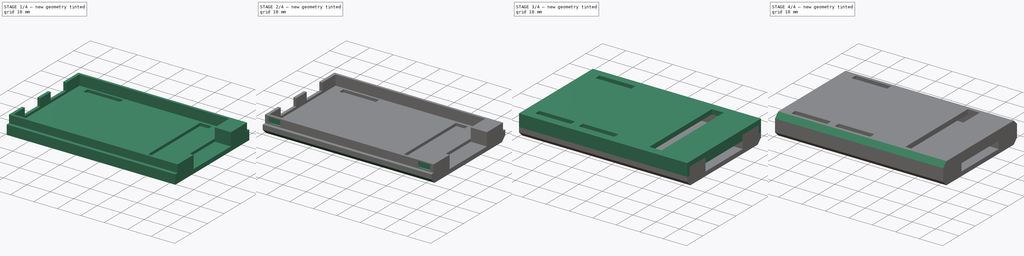
[diagram: build sequence overview — one tinted view per stage of 4, left to right]
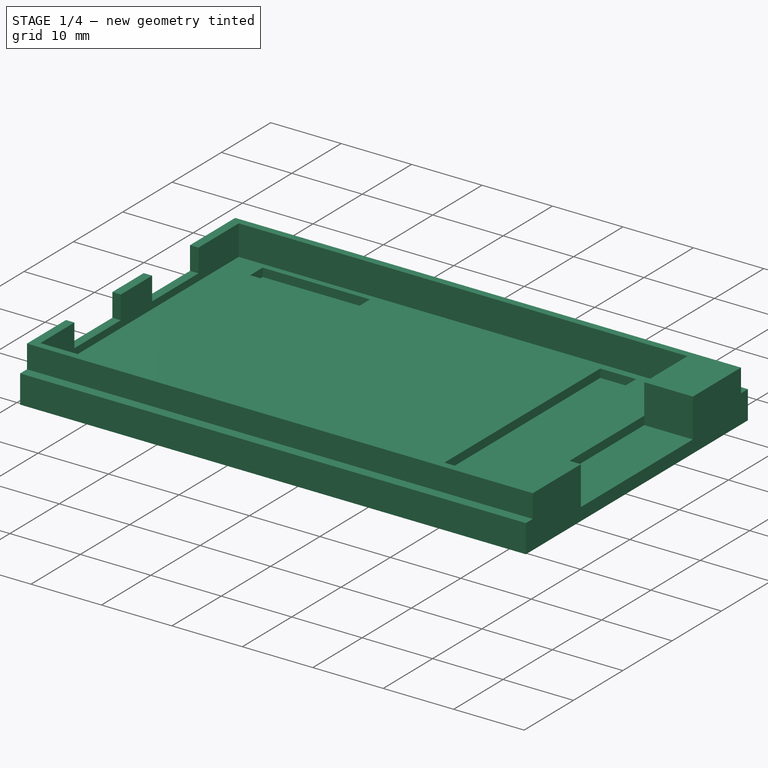
[diagram: stage 1 of 4 — iso view after this stage's code; geometry added in this stage tinted green]
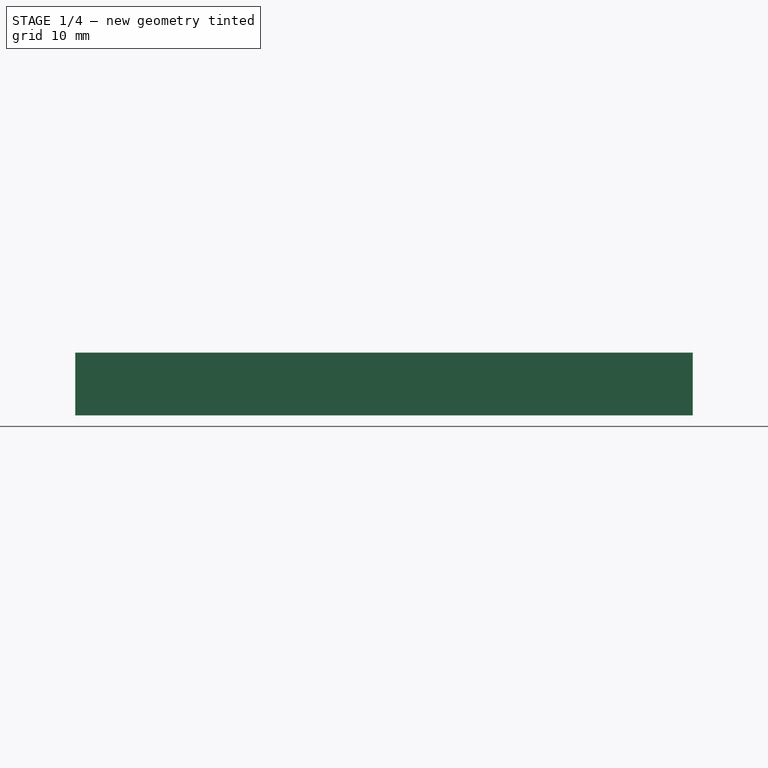
[diagram: stage 1 of 4 — front view after this stage's code; geometry added in this stage tinted green]
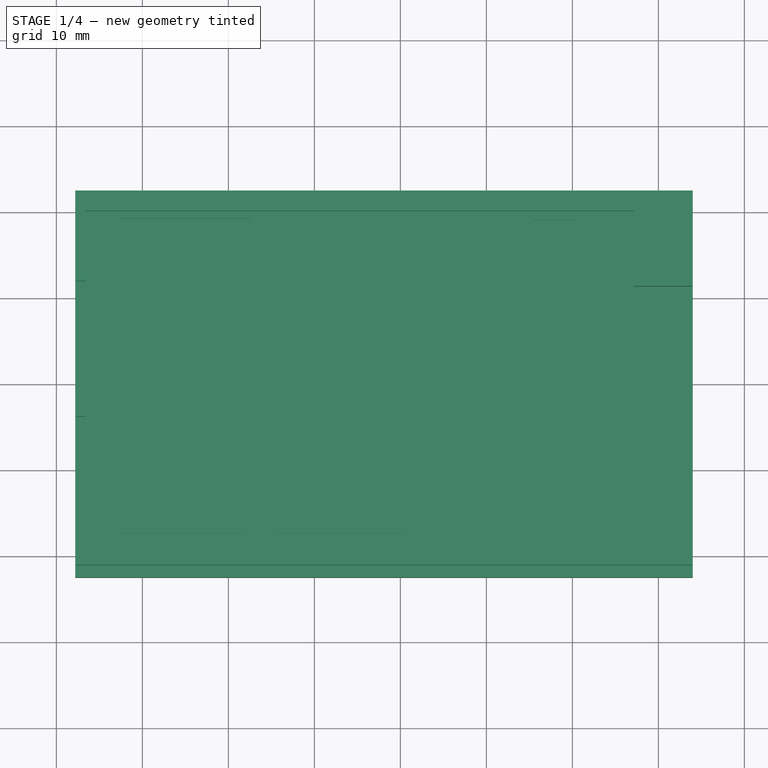
[diagram: stage 1 of 4 — top view after this stage's code; geometry added in this stage tinted green]
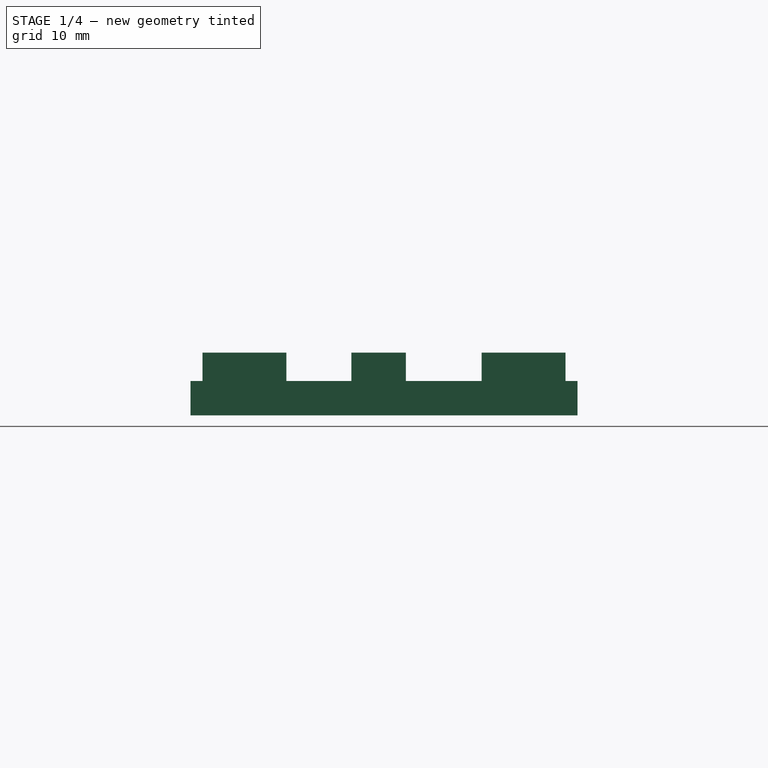
[diagram: stage 1 of 4 — right view after this stage's code; geometry added in this stage tinted green]
FCSTD DOCUMENT  (FreeCAD 0.21RUnknown)
Label: case
License: All rights reserved
LicenseURL: http://en.wikipedia.org/wiki/All_rights_reserved
objects: Part::Feature×42, App::Part×42, Sketcher::SketchObject×12, PartDesign::Pad×8, PartDesign::Pocket×3, PartDesign::Chamfer×3, PartDesign::ShapeBinder×2, PartDesign::Body×2
note: 86 computed .brp shape members not serialized (recipe doc carries the construction recipe); baked Part::Feature solids carry a one-line shape summary decoded from their .brp

FEATURE [Part::Feature] Part__Feature  label="PCB"
  shape: bbox 69 x 40 x 1.6 mm, 266 faces (baked)
FEATURE [Part::Feature] Part__Feature001  label="C101-1"
  shape: bbox 1.6 x 0.8 x 0.8 mm, 28 faces (baked)
FEATURE [App::Part] C101
  Group = -> [Part__Feature001]
  Origin = -> Origin
  Placement = pos=(-41.25,5.5,1.65) rot=(0,0,1;1.5708rad)
FEATURE [Part::Feature] Part__Feature002  label="C102-1"
  shape: bbox 1.6 x 0.8 x 0.8 mm, 28 faces (baked)
FEATURE [App::Part] C102
  Group = -> [Part__Feature002]
  Origin = -> Origin001
  Placement = pos=(-35.25,5.5,1.65) rot=(0,0,-1;1.5708rad)
FEATURE [Part::Feature] Part__Feature003  label="C103-1"
  shape: bbox 1.6 x 0.8 x 0.8 mm, 28 faces (baked)
FEATURE [App::Part] C103
  Group = -> [Part__Feature003]
  Origin = -> Origin002
  Placement = pos=(-40.086,-11.524,1.65) rot=(0,0,1;3.14159rad)
FEATURE [Part::Feature] Part__Feature004  label="C201-1"
  shape: bbox 2 x 1.25 x 1.25 mm, 28 faces (baked)
FEATURE [App::Part] C201
  Group = -> [Part__Feature004]
  Origin = -> Origin003
  Placement = pos=(-19.5,14.25,1.65) rot=(0,0,1;3.14159rad)
FEATURE [Part::Feature] Part__Feature005  label="C202-1"
  shape: bbox 2 x 1.25 x 1.25 mm, 28 faces (baked)
FEATURE [App::Part] C202
  Group = -> [Part__Feature005]
  Origin = -> Origin004
  Placement = pos=(-23,13.05,1.65) rot=(0,0,1;1.5708rad)
FEATURE [Part::Feature] Part__Feature006  label="C203-1"
  shape: bbox 2 x 1.25 x 1.25 mm, 28 faces (baked)
FEATURE [App::Part] C203
  Group = -> [Part__Feature006]
  Origin = -> Origin005
  Placement = pos=(-23,17.05,1.65) rot=(0,0,-1;1.5708rad)
FEATURE [Part::Feature] Part__Feature007  label="C204-1"
  shape: bbox 1.6 x 0.8 x 0.8 mm, 28 faces (baked)
FEATURE [App::Part] C204
  Group = -> [Part__Feature007]
  Origin = -> Origin006
  Placement = pos=(-50.048,-2.304,1.65) rot=(0,0,1;3.14159rad)
FEATURE [Part::Feature] Part__Feature008  label="C205-1"
  shape: bbox 1.6 x 0.8 x 0.8 mm, 28 faces (baked)
FEATURE [App::Part] C205
  Group = -> [Part__Feature008]
  Origin = -> Origin007
  Placement = pos=(-50.048,-3.84,1.65) rot=(0,0,1;3.14159rad)
FEATURE [Part::Feature] Part__Feature009  label="C206-1"
  shape: bbox 1.6 x 0.8 x 0.8 mm, 28 faces (baked)
FEATURE [App::Part] C206
  Group = -> [Part__Feature009]
  Origin = -> Origin008
  Placement = pos=(-50.03,-0.024,1.65) rot=(0,0,1;3.14159rad)
FEATURE [Part::Feature] Part__Feature010  label="C207-1"
  shape: bbox 1.6 x 0.8 x 0.8 mm, 28 faces (baked)
FEATURE [App::Part] C207
  Group = -> [Part__Feature010]
  Origin = -> Origin009
  Placement = pos=(-50.048,-5.376,1.65) rot=(0,0,1;3.14159rad)
FEATURE [Part::Feature] Part__Feature011  label="C208-1"
  shape: bbox 1.6 x 0.8 x 0.8 mm, 28 faces (baked)
FEATURE [App::Part] C208
  Group = -> [Part__Feature011]
  Origin = -> Origin010
  Placement = pos=(-43.392,-7.552,1.65) rot=(0,0,-1;1.5708rad)
FEATURE [Part::Feature] Part__Feature012  label="C209-1"
  shape: bbox 1.6 x 0.8 x 0.8 mm, 28 faces (baked)
FEATURE [App::Part] C209
  Group = -> [Part__Feature012]
  Origin = -> Origin011
  Placement = pos=(-36.75,-4,1.65) rot=(0,0,1;0rad)
FEATURE [Part::Feature] Part__Feature013  label="C210-1"
  shape: bbox 1.6 x 0.8 x 0.8 mm, 28 faces (baked)
FEATURE [App::Part] C210
  Group = -> [Part__Feature013]
  Origin = -> Origin012
  Placement = pos=(-36.75,0,1.65) rot=(0,0,1;0rad)
FEATURE [Part::Feature] Part__Feature014  label="C211-1"
  shape: bbox 1.6 x 0.8 x 0.8 mm, 28 faces (baked)
FEATURE [App::Part] C211
  Group = -> [Part__Feature014]
  Origin = -> Origin013
  Placement = pos=(-44.25,5.5,1.65) rot=(0,0,1;1.5708rad)
FEATURE [Part::Feature] Part__Feature015  label="C212-1"
  shape: bbox 1.6 x 0.8 x 0.8 mm, 28 faces (baked)
FEATURE [App::Part] C212
  Group = -> [Part__Feature015]
  Origin = -> Origin014
  Placement = pos=(-47.25,-7.5,1.65) rot=(0,0,-1;1.5708rad)
FEATURE [Part::Feature] Part__Feature016  label="C213-1"
  shape: bbox 1.6 x 0.8 x 0.8 mm, 28 faces (baked)
FEATURE [App::Part] C213
  Group = -> [Part__Feature016]
  Origin = -> Origin015
  Placement = pos=(-42.112,-7.936,1.65) rot=(0,0,-1;1.5708rad)
FEATURE [Part::Feature] Part__Feature017  label="C214-1"
  shape: bbox 1.6 x 0.8 x 0.8 mm, 28 faces (baked)
FEATURE [App::Part] C214
  Group = -> [Part__Feature017]
  Origin = -> Origin016
  Placement = pos=(-45.75,5.5,1.65) rot=(0,0,1;1.5708rad)
FEATURE [Part::Feature] Part__Feature018  label="C215-1"
  shape: bbox 1.6 x 0.8 x 0.8 mm, 28 faces (baked)
FEATURE [App::Part] C215
  Group = -> [Part__Feature018]
  Origin = -> Origin017
  Placement = pos=(-24.5,8,1.65) rot=(0,0,1;3.14159rad)
FEATURE [Part::Feature] Part__Feature019  label="C216-1"
  shape: bbox 1.6 x 0.8 x 0.8 mm, 28 faces (baked)
FEATURE [App::Part] C216
  Group = -> [Part__Feature019]
  Origin = -> Origin018
  Placement = pos=(-24.5,9.5,1.65) rot=(0,0,1;3.14159rad)
FEATURE [Part::Feature] Part__Feature020  label="C217-1"
  shape: bbox 1.6 x 0.8 x 0.8 mm, 28 faces (baked)
FEATURE [App::Part] C217
  Group = -> [Part__Feature020]
  Origin = -> Origin019
  Placement = pos=(-24.5,-0.5,1.65) rot=(0,0,1;3.14159rad)
FEATURE [Part::Feature] Part__Feature021  label="D101-1"
  shape: bbox 1.6 x 0.8 x 1.1 mm, 50 faces (baked)
FEATURE [App::Part] D101
  Group = -> [Part__Feature021]
  Origin = -> Origin020
  Placement = pos=(-26,-17.768,1.65) rot=(0,0,1;1.5708rad)
FEATURE [Part::Feature] Part__Feature022  label="D102-1"
  shape: bbox 1.6 x 0.8 x 1.1 mm, 50 faces (baked)
FEATURE [App::Part] D102
  Group = -> [Part__Feature022]
  Origin = -> Origin021
  Placement = pos=(-23.732,-17.768,1.65) rot=(0,0,1;1.5708rad)
FEATURE [Part::Feature] Part__Feature023  label="D103-1"
  shape: bbox 1.6 x 0.8 x 1.1 mm, 50 faces (baked)
FEATURE [App::Part] D103
  Group = -> [Part__Feature023]
  Origin = -> Origin022
  Placement = pos=(-21.464,-17.768,1.65) rot=(0,0,1;1.5708rad)
FEATURE [Part::Feature] Part__Feature024  label="R101-1"
  shape: bbox 1.6 x 0.8 x 0.45 mm, 26 faces (baked)
FEATURE [App::Part] R101
  Group = -> [Part__Feature024]
  Origin = -> Origin023
  Placement = pos=(-42.75,5.5,1.65) rot=(0,0,-1;1.5708rad)
FEATURE [Part::Feature] Part__Feature025  label="R102-1"
  shape: bbox 1.6 x 0.8 x 0.45 mm, 26 faces (baked)
FEATURE [App::Part] R102
  Group = -> [Part__Feature025]
  Origin = -> Origin024
  Placement = pos=(-21.76,8.448,1.65) rot=(0,0,-1;1.5708rad)
FEATURE [Part::Feature] Part__Feature026  label="R103-1"
  shape: bbox 1.6 x 0.8 x 0.45 mm, 26 faces (baked)
FEATURE [App::Part] R103
  Group = -> [Part__Feature026]
  Origin = -> Origin025
  Placement = pos=(-56.96,2.048,1.65) rot=(0,0,-1;1.5708rad)
FEATURE [Part::Feature] Part__Feature027  label="R104-1"
  shape: bbox 1.6 x 0.8 x 0.45 mm, 26 faces (baked)
FEATURE [App::Part] R104
  Group = -> [Part__Feature027]
  Origin = -> Origin026
  Placement = pos=(-36.75,-5.5,1.65) rot=(0,0,1;0rad)
FEATURE [Part::Feature] Part__Feature028  label="R105-1"
  shape: bbox 1.6 x 0.8 x 0.45 mm, 26 faces (baked)
FEATURE [App::Part] R105
  Group = -> [Part__Feature028]
  Origin = -> Origin027
  Placement = pos=(-58.624,12.416,1.65) rot=(0,0,1;1.5708rad)
FEATURE [Part::Feature] Part__Feature029  label="R106-1"
  shape: bbox 1 x 0.5 x 0.35 mm, 26 faces (baked)
FEATURE [App::Part] R106
  Group = -> [Part__Feature029]
  Origin = -> Origin028
  Placement = pos=(-44.75,-7,1.65) rot=(0,0,1;1.5708rad)
FEATURE [Part::Feature] Part__Feature030  label="R107-1"
  shape: bbox 1 x 0.5 x 0.35 mm, 26 faces (baked)
FEATURE [App::Part] R107
  Group = -> [Part__Feature030]
  Origin = -> Origin029
  Placement = pos=(-45.75,-7,1.65) rot=(0,0,1;1.5708rad)
FEATURE [Part::Feature] Part__Feature031  label="R108-1"
  shape: bbox 1.6 x 0.8 x 0.45 mm, 26 faces (baked)
FEATURE [App::Part] R108
  Group = -> [Part__Feature031]
  Origin = -> Origin030
  Placement = pos=(-26,-14.768,1.65) rot=(0,0,-1;1.5708rad)
FEATURE [Part::Feature] Part__Feature032  label="R109-1"
  shape: bbox 1.6 x 0.8 x 0.45 mm, 26 faces (baked)
FEATURE [App::Part] R109
  Group = -> [Part__Feature032]
  Origin = -> Origin031
  Placement = pos=(-58.624,2.048,1.65) rot=(0,0,-1;1.5708rad)
FEATURE [Part::Feature] Part__Feature033  label="R110-1"
  shape: bbox 1.6 x 0.8 x 0.45 mm, 26 faces (baked)
FEATURE [App::Part] R110
  Group = -> [Part__Feature033]
  Origin = -> Origin032
  Placement = pos=(-56.96,12.416,1.65) rot=(0,0,1;1.5708rad)
FEATURE [Part::Feature] Part__Feature034  label="R111-1"
  shape: bbox 1.6 x 0.8 x 0.45 mm, 26 faces (baked)
FEATURE [App::Part] R111
  Group = -> [Part__Feature034]
  Origin = -> Origin033
  Placement = pos=(-23.732,-14.768,1.65) rot=(0,0,-1;1.5708rad)
FEATURE [Part::Feature] Part__Feature035  label="R112-1"
  shape: bbox 1.6 x 0.8 x 0.45 mm, 26 faces (baked)
FEATURE [App::Part] R112
  Group = -> [Part__Feature035]
  Origin = -> Origin034
  Placement = pos=(-21.464,-14.768,1.65) rot=(0,0,-1;1.5708rad)
FEATURE [Part::Feature] Part__Feature036  label="R113-1"
  shape: bbox 1.6 x 0.8 x 0.45 mm, 26 faces (baked)
FEATURE [App::Part] R113
  Group = -> [Part__Feature036]
  Origin = -> Origin035
  Placement = pos=(-33.75,-5.5,1.65) rot=(0,0,1;0rad)
FEATURE [Part::Feature] Part__Feature037  label="R302-1"
  shape: bbox 1.6 x 0.8 x 0.45 mm, 26 faces (baked)
FEATURE [App::Part] R302
  Group = -> [Part__Feature037]
  Origin = -> Origin036
  Placement = pos=(-58.624,-13.696,1.65) rot=(0,0,-1;1.5708rad)
FEATURE [Part::Feature] Part__Feature038  label="R303-1"
  shape: bbox 1.6 x 0.8 x 0.45 mm, 26 faces (baked)
FEATURE [App::Part] R303
  Group = -> [Part__Feature038]
  Origin = -> Origin037
  Placement = pos=(-56.85,-3.328,1.65) rot=(0,0,1;1.5708rad)
FEATURE [Part::Feature] Part__Feature039  label="U102-1"
  shape: bbox 6 x 4.9 x 1.75 mm, 156 faces (baked)
FEATURE [App::Part] U102
  Group = -> [Part__Feature039]
  Origin = -> Origin038
  Placement = pos=(-34.75,-9.5,1.65) rot=(0,0,1;3.14159rad)
FEATURE [Part::Feature] Part__Feature040  label="U201-1"
  shape: bbox 7 x 6.5 x 1.7 mm, 78 faces (baked)
FEATURE [App::Part] U201
  Group = -> [Part__Feature040]
  Origin = -> Origin039
  Placement = pos=(-28,15.05,1.65) rot=(0,0,1;1.5708rad)
FEATURE [Part::Feature] Part__Feature041  label="U202-1"
  shape: bbox 2.8 x 2.9 x 1.55 mm, 109 faces (baked)
FEATURE [App::Part] U202
  Group = -> [Part__Feature041]
  Origin = -> Origin040
  Placement = pos=(-19.5,17.25,1.65) rot=(0,0,1;0rad)
FEATURE [App::Part] PCA
  Group = -> [Part__Feature,C101,C102,C103,C201,C202,C203,C204,C205,C206,C207,C208,C209,C210,C211,C212,C213,C214,C215,C216,C217,D101,D102,D103,R101,R102,R103,R104,R105,R106,R107,R108,R109,R110,R111,R112,R113,R302,R303,U102,U201,U202]
  Origin = -> Origin041
FEATURE [PartDesign::ShapeBinder] ShapeBinder
  Support = -> [Part__Feature]
  TraceSupport = false
FEATURE [Sketcher::SketchObject] Sketch
  ExternalGeometry = -> [ShapeBinder]
  FullyConstrained = true
  MapMode = 5
  Support = -> [XY_Plane042]
  sketch-geometry (51):
    g0: LineSegment StartX=-66.5 StartY=20 StartZ=0 EndX=-3 EndY=20 EndZ=0
    g1: LineSegment StartX=-3 StartY=20 StartZ=0 EndX=-3 EndY=11.25 EndZ=0
    g2: LineSegment StartX=-3 StartY=11.25 StartZ=0 EndX=0 EndY=11.25 EndZ=0
    g3: LineSegment StartX=0 StartY=11.25 StartZ=0 EndX=0 EndY=8 EndZ=0
    g4: LineSegment StartX=0 StartY=8 StartZ=0 EndX=2.5 EndY=8 EndZ=0
    g5: LineSegment StartX=2.5 StartY=8 StartZ=0 EndX=2.5 EndY=-8 EndZ=0
    g6: LineSegment StartX=2.5 StartY=-8 StartZ=0 EndX=0 EndY=-8 EndZ=0
    g7: LineSegment StartX=0 StartY=-8 StartZ=0 EndX=0 EndY=-11.25 EndZ=0
    g8: LineSegment StartX=0 StartY=-11.25 StartZ=0 EndX=-3 EndY=-11.25 EndZ=0
    g9: LineSegment StartX=-3 StartY=-11.25 StartZ=0 EndX=-3 EndY=-20 EndZ=0
    g10: LineSegment StartX=-3 StartY=-20 StartZ=0 EndX=-66.5 EndY=-20 EndZ=0
    g11: LineSegment StartX=-66.5 StartY=-20 StartZ=0 EndX=-66.5 EndY=20 EndZ=0
    g12: LineSegment StartX=-14.54 StartY=19.05 StartZ=0 EndX=-9.46 EndY=19.05 EndZ=0
    g13: LineSegment StartX=-9.46 StartY=19.05 StartZ=0 EndX=-9.46 EndY=-19.05 EndZ=0
    g14: LineSegment StartX=-9.46 StartY=-19.05 StartZ=0 EndX=-14.54 EndY=-19.05 EndZ=0
    g15: LineSegment StartX=-14.54 StartY=-19.05 StartZ=0 EndX=-14.54 EndY=19.05 EndZ=0
    g16: LineSegment StartX=-10.73 StartY=-17.78 StartZ=0 EndX=-9.46 EndY=-19.05 EndZ=0
    g17: LineSegment StartX=-13.27 StartY=-17.78 StartZ=0 EndX=-14.54 EndY=-19.05 EndZ=0
    g18: LineSegment StartX=-10.73 StartY=17.78 StartZ=0 EndX=-9.46 EndY=19.05 EndZ=0
    g19: LineSegment StartX=-63.12 StartY=-16.73 StartZ=0 EndX=-47.88 EndY=-16.73 EndZ=0
    g20: LineSegment StartX=-47.88 StartY=-16.73 StartZ=0 EndX=-47.88 EndY=-19.27 EndZ=0
    g21: LineSegment StartX=-47.88 StartY=-19.27 StartZ=0 EndX=-63.12 EndY=-19.27 EndZ=0
    g22: LineSegment StartX=-63.12 StartY=-19.27 StartZ=0 EndX=-63.12 EndY=-16.73 EndZ=0
    g23: LineSegment StartX=-44.62 StartY=-16.73 StartZ=0 EndX=-29.38 EndY=-16.73 EndZ=0
    g24: LineSegment StartX=-29.38 StartY=-16.73 StartZ=0 EndX=-29.38 EndY=-19.27 EndZ=0
    g25: LineSegment StartX=-29.38 StartY=-19.27 StartZ=0 EndX=-44.62 EndY=-19.27 EndZ=0
    g26: LineSegment StartX=-44.62 StartY=-19.27 StartZ=0 EndX=-44.62 EndY=-16.73 EndZ=0
    g27: LineSegment StartX=-62.62 StartY=19.27 StartZ=0 EndX=-47.38 EndY=19.27 EndZ=0
    g28: LineSegment StartX=-47.38 StartY=19.27 StartZ=0 EndX=-47.38 EndY=16.73 EndZ=0
    g29: LineSegment StartX=-47.38 StartY=16.73 StartZ=0 EndX=-62.62 EndY=16.73 EndZ=0
    g30: LineSegment StartX=-62.62 StartY=16.73 StartZ=0 EndX=-62.62 EndY=19.27 EndZ=0
    g31: LineSegment StartX=-63.12 StartY=-16.73 StartZ=0 EndX=-61.85 EndY=-18 EndZ=0
    g32: LineSegment StartX=-61.85 StartY=-18 StartZ=0 EndX=-63.12 EndY=-19.27 EndZ=0
    g33: LineSegment StartX=-49.15 StartY=-18 StartZ=0 EndX=-47.88 EndY=-16.73 EndZ=0
    g34: LineSegment StartX=-44.62 StartY=-16.73 StartZ=0 EndX=-43.35 EndY=-18 EndZ=0
    g35: LineSegment StartX=-30.65 StartY=-18 StartZ=0 EndX=-29.38 EndY=-16.73 EndZ=0
    g36: LineSegment StartX=-62.62 StartY=19.27 StartZ=0 EndX=-61.35 EndY=18 EndZ=0
    g37: LineSegment StartX=-61.35 StartY=18 StartZ=0 EndX=-62.62 EndY=16.73 EndZ=0
    g38: LineSegment StartX=-48.65 StartY=18 StartZ=0 EndX=-47.38 EndY=19.27 EndZ=0
    g39: LineSegment StartX=-60.3 StartY=2.75 StartZ=0 EndX=-67.8 EndY=2.75 EndZ=0
    g40: LineSegment StartX=-67.8 StartY=2.75 StartZ=0 EndX=-67.8 EndY=11.75 EndZ=0
    g41: LineSegment StartX=-67.8 StartY=11.75 StartZ=0 EndX=-60.3 EndY=11.75 EndZ=0
    g42: LineSegment StartX=-60.3 StartY=11.75 StartZ=0 EndX=-60.3 EndY=2.75 EndZ=0
    g43: LineSegment StartX=-60.3 StartY=-4 StartZ=0 EndX=-67.8 EndY=-4 EndZ=0
    g44: LineSegment StartX=-67.8 StartY=-4 StartZ=0 EndX=-67.8 EndY=-13 EndZ=0
    g45: LineSegment StartX=-67.8 StartY=-13 StartZ=0 EndX=-60.3 EndY=-13 EndZ=0
    g46: LineSegment StartX=-60.3 StartY=-13 StartZ=0 EndX=-60.3 EndY=-4 EndZ=0
    g47: LineSegment StartX=-61.57 StartY=10.14 StartZ=0 EndX=-60.3 EndY=11.75 EndZ=0
    g48: LineSegment StartX=-61.57 StartY=4.36 StartZ=0 EndX=-60.3 EndY=2.75 EndZ=0
    g49: LineSegment StartX=-61.57 StartY=-5.61 StartZ=0 EndX=-60.3 EndY=-4 EndZ=0
    g50: LineSegment StartX=-61.57 StartY=-11.39 StartZ=0 EndX=-60.3 EndY=-13 EndZ=0
  constraints (126):
    c: Coincident(g0,g-3)
    c: Coincident(g0,g-4)
    c: Coincident(g1,g0)
    c: Coincident(g1,g-4)
    c: Coincident(g2,g1)
    c: Coincident(g2,g-7)
    c: Coincident(g3,g2)
    c: Coincident(g3,g-7)
    c: Coincident(g4,g3)
    c: Coincident(g4,g-9)
    c: Coincident(g5,g4)
    c: Coincident(g5,g-9)
    c: Coincident(g6,g5)
    c: Coincident(g6,g-8)
    c: Coincident(g7,g6)
    c: Coincident(g7,g-8)
    c: Coincident(g8,g7)
    c: Coincident(g8,g-5)
    c: Coincident(g9,g8)
    c: Coincident(g9,g-6)
    c: Coincident(g10,g9)
    c: Coincident(g10,g-6)
    c: Coincident(g11,g10)
    c: Coincident(g11,g0)
    c: Coincident(g12,g13)
    c: Coincident(g13,g14)
    c: Coincident(g14,g15)
    c: Coincident(g15,g12)
    c: Horizontal(g12)
    c: Horizontal(g14)
    c: Vertical(g13)
    c: Vertical(g15)
    c: DistanceX(g12,g12) = 5.08
    c: DistanceY(g13,g13) = 38.1
    c: Coincident(g16,g-12)
    c: Coincident(g16,g13)
    c: Coincident(g17,g-11)
    c: Coincident(g17,g14)
    c: Coincident(g18,g-10)
    c: Coincident(g18,g12)
    c: Equal(g18,g16)
    c: Equal(g16,g17)
    c: Coincident(g19,g20)
    c: Coincident(g20,g21)
    c: Coincident(g21,g22)
    c: Coincident(g22,g19)
    c: Horizontal(g19)
    c: Horizontal(g21)
    c: Vertical(g20)
    c: Vertical(g22)
    c: Coincident(g23,g24)
    c: Coincident(g24,g25)
    c: Coincident(g25,g26)
    c: Coincident(g26,g23)
    c: Horizontal(g23)
    c: Horizontal(g25)
    c: Vertical(g24)
    c: Vertical(g26)
    c: Coincident(g27,g28)
    c: Coincident(g28,g29)
    c: Coincident(g29,g30)
    c: Coincident(g30,g27)
    c: Horizontal(g27)
    c: Horizontal(g29)
    c: Vertical(g28)
    c: Vertical(g30)
    c: DistanceY(g28,g28) = 2.54
    c: Equal(g28,g20)
    c: Equal(g20,g24)
    c: DistanceX(g23,g23) = 15.24
    c: Equal(g23,g19)
    c: Equal(g19,g29)
    c: PointOnObject(g23,g19)
    c: Coincident(g31,g19)
    c: Coincident(g31,g-15)
    c: Coincident(g32,g31)
    c: Coincident(g32,g21)
    c: Coincident(g33,g-16)
    c: Coincident(g33,g19)
    c: Equal(g31,g32)
    c: Equal(g32,g33)
    c: Coincident(g34,g23)
    c: Coincident(g34,g-17)
    c: Coincident(g35,g-18)
    c: Coincident(g35,g23)
    c: Equal(g35,g34)
    c: Coincident(g36,g27)
    c: Coincident(g36,g-13)
    c: Coincident(g37,g36)
    c: Coincident(g37,g29)
    c: Coincident(g38,g-14)
    c: Coincident(g38,g27)
    c: Equal(g38,g36)
    c: Equal(g36,g37)
    c: Coincident(g39,g40)
    c: Coincident(g40,g41)
    c: Coincident(g41,g42)
    c: Coincident(g42,g39)
    c: Horizontal(g39)
    c: Horizontal(g41)
    c: Vertical(g40)
    c: Vertical(g42)
    c: DistanceX(g41,g41) = 7.5
    c: DistanceY(g42,g42) = 9
    c: Coincident(g43,g44)
    c: Coincident(g44,g45)
    c: Coincident(g45,g46)
    c: Coincident(g46,g43)
    c: Horizontal(g43)
    c: Horizontal(g45)
    c: Vertical(g44)
    c: Vertical(g46)
    c: Equal(g44,g40)
    c: Equal(g39,g43)
    c: PointOnObject(g43,g40)
    c: Coincident(g47,g-19)
    c: Coincident(g47,g41)
    c: Coincident(g48,g-20)
    c: Coincident(g48,g39)
    c: Equal(g48,g47)
    c: Coincident(g49,g-21)
    c: Coincident(g49,g43)
    c: Coincident(g50,g-22)
    c: Coincident(g50,g45)
    c: Equal(g50,g49)
    c: DistanceX(g44,g10) = 1.3
FEATURE [Sketcher::SketchObject] Sketch001
  ExternalGeometry = -> [Sketch]
  FullyConstrained = true
  MapMode = 5
  Support = -> [XY_Plane042]
  sketch-geometry (12):
    g0: LineSegment StartX=-66.6 StartY=20.1 StartZ=0 EndX=-66.6 EndY=-20.1 EndZ=0
    g1: LineSegment StartX=-66.6 StartY=-20.1 StartZ=0 EndX=-2.9 EndY=-20.1 EndZ=0
    g2: LineSegment StartX=-2.9 StartY=-20.1 StartZ=0 EndX=-2.9 EndY=-11.35 EndZ=0
    g3: LineSegment StartX=-2.9 StartY=-11.35 StartZ=0 EndX=4 EndY=-11.35 EndZ=0
    g4: LineSegment StartX=-66.6 StartY=20.1 StartZ=0 EndX=-2.9 EndY=20.1 EndZ=0
    g5: LineSegment StartX=-2.9 StartY=20.1 StartZ=0 EndX=-2.9 EndY=11.35 EndZ=0
    g6: LineSegment StartX=-2.9 StartY=11.35 StartZ=0 EndX=4 EndY=11.35 EndZ=0
    g7: LineSegment StartX=4 StartY=-11.35 StartZ=0 EndX=4 EndY=-22.5 EndZ=0
    g8: LineSegment StartX=4 StartY=-22.5 StartZ=0 EndX=-67.8 EndY=-22.5 EndZ=0
    g9: LineSegment StartX=-67.8 StartY=-22.5 StartZ=0 EndX=-67.8 EndY=22.5 EndZ=0
    g10: LineSegment StartX=-67.8 StartY=22.5 StartZ=0 EndX=4 EndY=22.5 EndZ=0
    g11: LineSegment StartX=4 StartY=22.5 StartZ=0 EndX=4 EndY=11.35 EndZ=0
  constraints (36):
    c: Vertical(g0)
    c: DistanceX(g0,g-3) = 0.1
    c: DistanceY(g-3,g0) = 0.1
    c: DistanceY(g0,g-4) = 0.1
    c: Coincident(g1,g0)
    c: Horizontal(g1)
    c: Coincident(g2,g1)
    c: Vertical(g2)
    c: Coincident(g3,g2)
    c: Horizontal(g3)
    c: DistanceX(g-10,g3) = 7
    c: DistanceX(g-10,g2) = 0.1
    c: DistanceY(g2,g-10) = 0.1
    c: Coincident(g4,g0)
    c: Horizontal(g4)
    c: Coincident(g5,g4)
    c: Vertical(g5)
    c: Coincident(g6,g5)
    c: Horizontal(g6)
    c: Vertical(g6,g3)
    c: DistanceX(g-3,g4) = 0.1
    c: DistanceY(g-9,g5) = 0.1
    c: Coincident(g7,g3)
    c: Vertical(g7)
    c: Coincident(g8,g7)
    c: Horizontal(g8)
    c: Coincident(g9,g8)
    c: Vertical(g9)
    c: Coincident(g10,g9)
    c: Horizontal(g10)
    c: Coincident(g11,g10)
    c: Coincident(g11,g6)
    c: Vertical(g11)
    c: PointOnObject(g-8,g9)
    c: DistanceY(g7,g10) = 45
    c: Equal(g7,g11)
FEATURE [PartDesign::Pad] Pad
  Direction = (0,0,1)
  Length = 1
  Length2 = 10
  Profile = -> Sketch001
  ReferenceAxis = -> Sketch001 [N_Axis]
  Type = 0
FEATURE [Sketcher::SketchObject] Sketch002
  ExternalGeometry = -> [Pad]
  FullyConstrained = true
  MapMode = 5
  Placement = pos=(0,0,0) rot=(1,0,0;3.14159rad)
  Support = -> [Pad]
  sketch-geometry (4):
    g0: LineSegment StartX=-67.8 StartY=22.5 StartZ=0 EndX=4 EndY=22.5 EndZ=0
    g1: LineSegment StartX=4 StartY=22.5 StartZ=0 EndX=4 EndY=-22.5 EndZ=0
    g2: LineSegment StartX=4 StartY=-22.5 StartZ=0 EndX=-67.8 EndY=-22.5 EndZ=0
    g3: LineSegment StartX=-67.8 StartY=-22.5 StartZ=0 EndX=-67.8 EndY=22.5 EndZ=0
  constraints (10):
    c: Coincident(g0,g1)
    c: Coincident(g1,g2)
    c: Coincident(g2,g3)
    c: Coincident(g3,g0)
    c: Horizontal(g0)
    c: Horizontal(g2)
    c: Vertical(g1)
    c: Vertical(g3)
    c: Coincident(g0,g-3)
    c: Coincident(g1,g-4)
FEATURE [PartDesign::Pad] Pad001
  BaseFeature = -> Pad
  Direction = (0,0,-1)
  Length = 3
  Length2 = 10
  Profile = -> Sketch002
  ReferenceAxis = -> Sketch002 [N_Axis]
  Type = 0
FEATURE [Sketcher::SketchObject] Sketch003
  ExternalGeometry = -> [Pad001,Sketch]
  FullyConstrained = false
  MapMode = 5
  Support = -> [Pad001]
  sketch-geometry (20):
    g0: LineSegment StartX=-2.9 StartY=11.35 StartZ=0 EndX=4 EndY=11.35 EndZ=0
    g1: LineSegment StartX=4 StartY=11.35 StartZ=0 EndX=4 EndY=-11.35 EndZ=0
    g2: LineSegment StartX=4 StartY=-11.35 StartZ=0 EndX=-2.9 EndY=-11.35 EndZ=0
    g3: LineSegment StartX=-2.9 StartY=-11.35 StartZ=0 EndX=-2.9 EndY=11.35 EndZ=0
    g4: LineSegment StartX=-14.54 StartY=19.05 StartZ=0 EndX=-9.46 EndY=19.05 EndZ=0
    g5: LineSegment StartX=-9.46 StartY=19.05 StartZ=0 EndX=-9.46 EndY=-19.05 EndZ=0
    g6: LineSegment StartX=-9.46 StartY=-19.05 StartZ=0 EndX=-14.54 EndY=-19.05 EndZ=0
    g7: LineSegment StartX=-14.54 StartY=-19.05 StartZ=0 EndX=-14.54 EndY=19.05 EndZ=0
    g8: LineSegment StartX=-62.62 StartY=19.27 StartZ=0 EndX=-47.38 EndY=19.27 EndZ=0
    g9: LineSegment StartX=-47.38 StartY=19.27 StartZ=0 EndX=-47.38 EndY=16.73 EndZ=0
    g10: LineSegment StartX=-47.38 StartY=16.73 StartZ=0 EndX=-62.62 EndY=16.73 EndZ=0
    g11: LineSegment StartX=-62.62 StartY=16.73 StartZ=0 EndX=-62.62 EndY=19.27 EndZ=0
    g12: LineSegment StartX=-63.12 StartY=-16.73 StartZ=0 EndX=-47.88 EndY=-16.73 EndZ=0
    g13: LineSegment StartX=-47.88 StartY=-16.73 StartZ=0 EndX=-47.88 EndY=-19.27 EndZ=0
    g14: LineSegment StartX=-47.88 StartY=-19.27 StartZ=0 EndX=-63.12 EndY=-19.27 EndZ=0
    g15: LineSegment StartX=-63.12 StartY=-19.27 StartZ=0 EndX=-63.12 EndY=-16.73 EndZ=0
    g16: LineSegment StartX=-44.62 StartY=-16.73 StartZ=0 EndX=-29.38 EndY=-16.73 EndZ=0
    g17: LineSegment StartX=-29.38 StartY=-16.73 StartZ=0 EndX=-29.38 EndY=-19.27 EndZ=0
    g18: LineSegment StartX=-29.38 StartY=-19.27 StartZ=0 EndX=-44.62 EndY=-19.27 EndZ=0
    g19: LineSegment StartX=-44.62 StartY=-19.27 StartZ=0 EndX=-44.62 EndY=-16.73 EndZ=0
  constraints (48):
    c: Coincident(g0,g1)
    c: Coincident(g1,g2)
    c: Coincident(g2,g3)
    c: Coincident(g3,g0)
    c: Horizontal(g0)
    c: Horizontal(g2)
    c: Vertical(g1)
    c: Vertical(g3)
    c: Coincident(g0,g-3)
    c: Coincident(g1,g-4)
    c: Coincident(g4,g5)
    c: Coincident(g5,g6)
    c: Coincident(g6,g7)
    c: Coincident(g7,g4)
    c: Horizontal(g4)
    c: Horizontal(g6)
    c: Vertical(g5)
    c: Vertical(g7)
    c: Coincident(g8,g9)
    c: Coincident(g9,g10)
    c: Coincident(g10,g11)
    c: Coincident(g11,g8)
    c: Horizontal(g8)
    c: Horizontal(g10)
    c: Vertical(g9)
    c: Vertical(g11)
    c: Coincident(g8,g-5)
    c: Coincident(g9,g-6)
    c: Coincident(g12,g13)
    c: Coincident(g13,g14)
    c: Coincident(g14,g15)
    c: Coincident(g15,g12)
    c: Horizontal(g12)
    c: Horizontal(g14)
    c: Vertical(g13)
    c: Vertical(g15)
    c: Coincident(g12,g-7)
    c: Coincident(g13,g-8)
    c: Coincident(g16,g17)
    c: Coincident(g17,g18)
    c: Coincident(g18,g19)
    c: Coincident(g19,g16)
    c: Horizontal(g16)
    c: Horizontal(g18)
    c: Vertical(g17)
    c: Vertical(g19)
    c: Coincident(g16,g-9)
    c: Coincident(g17,g-10)
FEATURE [PartDesign::Pocket] Pocket
  BaseFeature = -> Pad001
  Direction = (0,0,-1)
  Length = 1.2
  Length2 = 5
  Profile = -> Sketch003
  ReferenceAxis = -> Sketch003 [N_Axis]
  Type = 0
FEATURE [Sketcher::SketchObject] Sketch004
  ExternalGeometry = -> [Sketch,Pocket]
  FullyConstrained = true
  MapMode = 5
  Placement = pos=(0,0,1) rot=(0,0,1;0rad)
  Support = -> [Pocket]
  sketch-geometry (21):
    g0: LineSegment StartX=-67.8 StartY=2.55 StartZ=0 EndX=-66.6 EndY=2.55 EndZ=0
    g1: LineSegment StartX=-66.6 StartY=2.55 StartZ=0 EndX=-66.6 EndY=-3.8 EndZ=0
    g2: LineSegment StartX=-66.6 StartY=-3.8 StartZ=0 EndX=-67.8 EndY=-3.8 EndZ=0
    g3: LineSegment StartX=-67.8 StartY=-3.8 StartZ=0 EndX=-67.8 EndY=2.55 EndZ=0
    g4: LineSegment StartX=-67.8 StartY=11.95 StartZ=0 EndX=-66.6 EndY=11.95 EndZ=0
    g5: LineSegment StartX=-66.6 StartY=11.95 StartZ=0 EndX=-66.6 EndY=20.1 EndZ=0
    g6: LineSegment StartX=-67.8 StartY=-13.2 StartZ=0 EndX=-66.6 EndY=-13.2 EndZ=0
    g7: LineSegment StartX=-66.6 StartY=-13.2 StartZ=0 EndX=-66.6 EndY=-20.1 EndZ=0
    g8: LineSegment StartX=-67.8 StartY=11.95 StartZ=0 EndX=-67.8 EndY=21.1 EndZ=0
    g9: LineSegment StartX=-67.8 StartY=11.95 StartZ=0 EndX=-67.8 EndY=2.55 EndZ=0
    g10: LineSegment StartX=-67.8 StartY=-13.2 StartZ=0 EndX=-67.8 EndY=-21.1 EndZ=0
    g11: LineSegment StartX=-67.8 StartY=-21.1 StartZ=0 EndX=4 EndY=-21.1 EndZ=0
    g12: LineSegment StartX=-2.9 StartY=-20.1 StartZ=0 EndX=-66.6 EndY=-20.1 EndZ=0
    g13: LineSegment StartX=-66.6 StartY=20.1 StartZ=0 EndX=-2.9 EndY=20.1 EndZ=0
    g14: LineSegment StartX=-67.8 StartY=21.1 StartZ=0 EndX=4 EndY=21.1 EndZ=0
    g15: LineSegment StartX=-2.9 StartY=20.1 StartZ=0 EndX=-2.9 EndY=11.35 EndZ=0
    g16: LineSegment StartX=-2.9 StartY=11.35 StartZ=0 EndX=4 EndY=11.35 EndZ=0
    g17: LineSegment StartX=4 StartY=11.35 StartZ=0 EndX=4 EndY=21.1 EndZ=0
    g18: LineSegment StartX=-2.9 StartY=-20.1 StartZ=0 EndX=-2.9 EndY=-11.35 EndZ=0
    g19: LineSegment StartX=-2.9 StartY=-11.35 StartZ=0 EndX=4 EndY=-11.35 EndZ=0
    g20: LineSegment StartX=4 StartY=-11.35 StartZ=0 EndX=4 EndY=-21.1 EndZ=0
  constraints (55):
    c: Coincident(g0,g1)
    c: Coincident(g1,g2)
    c: Coincident(g2,g3)
    c: Coincident(g3,g0)
    c: Horizontal(g0)
    c: Horizontal(g2)
    c: Vertical(g1)
    c: Vertical(g3)
    c: PointOnObject(g-4,g3)
    c: PointOnObject(g0,g-7)
    c: DistanceY(g0,g-4) = 0.2
    c: DistanceY(g-5,g2) = 0.2
    c: PointOnObject(g4,g-7)
    c: Horizontal(g4)
    c: Coincident(g5,g4)
    c: DistanceY(g-3,g4) = 0.2
    c: PointOnObject(g6,g-7)
    c: Horizontal(g6)
    c: Coincident(g7,g6)
    c: DistanceY(g6,g-6) = 0.2
    c: Coincident(g8,g4)
    c: Vertical(g8)
    c: Coincident(g9,g4)
    c: Coincident(g9,g0)
    c: Vertical(g9)
    c: Coincident(g10,g6)
    c: Vertical(g10)
    c: Coincident(g11,g10)
    c: Horizontal(g11)
    c: DistanceY(g11,g-8) = 1
    c: Coincident(g12,g7)
    c: PointOnObject(g-6,g10)
    c: Coincident(g13,g5)
    c: Horizontal(g13)
    c: Coincident(g-7,g5)
    c: Coincident(g14,g8)
    c: Horizontal(g14)
    c: Vertical(g14,g-9)
    c: Vertical(g-9,g13)
    c: Vertical(g11,g-10)
    c: Coincident(g-8,g7)
    c: Coincident(g12,g-8)
    c: Coincident(g15,g13)
    c: Coincident(g15,g-9)
    c: Coincident(g16,g15)
    c: Coincident(g16,g-9)
    c: Coincident(g17,g16)
    c: Coincident(g17,g14)
    c: Coincident(g18,g12)
    c: Coincident(g18,g-10)
    c: Coincident(g19,g18)
    c: Coincident(g19,g-10)
    c: Coincident(g20,g19)
    c: Coincident(g20,g11)
    c: Equal(g20,g17)
FEATURE [PartDesign::Pad] Pad002
  BaseFeature = -> Pocket
  Direction = (0,0,1)
  Length = 3.3
  Length2 = 10
  Profile = -> Sketch004
  ReferenceAxis = -> Sketch004 [N_Axis]
  Refine = true
  Type = 0
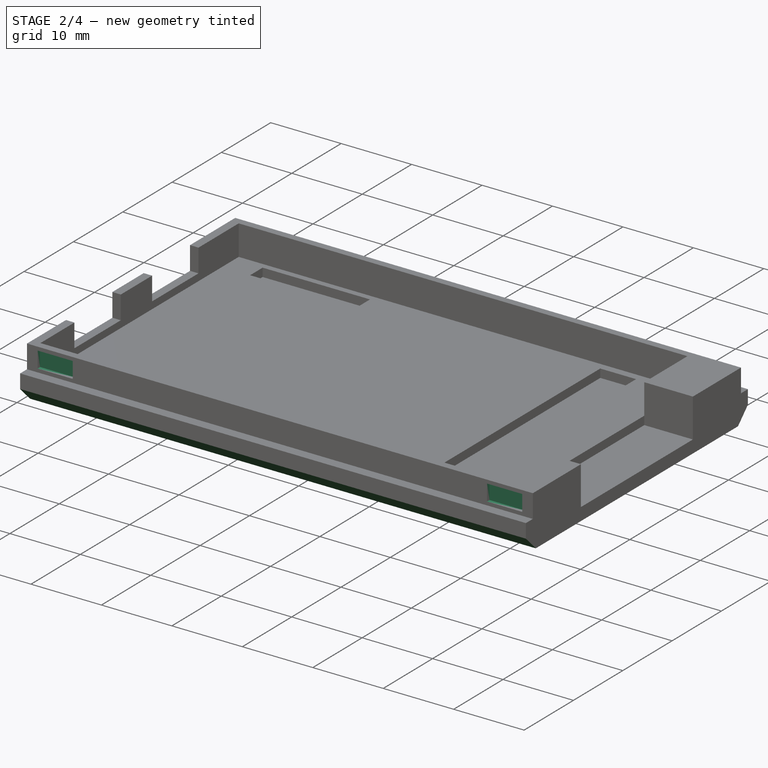
[diagram: stage 2 of 4 — iso view after this stage's code; geometry added in this stage tinted green]
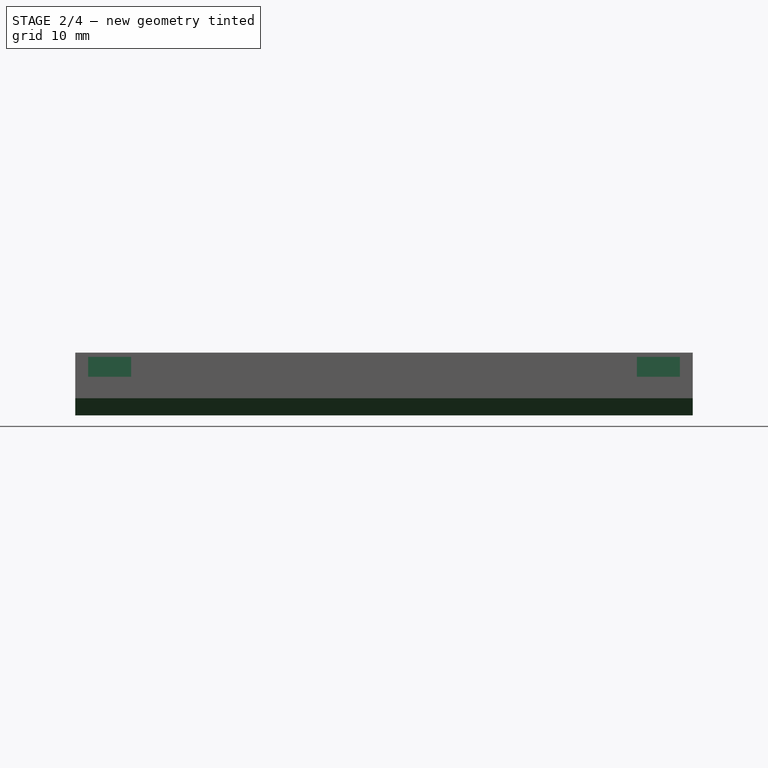
[diagram: stage 2 of 4 — front view after this stage's code; geometry added in this stage tinted green]
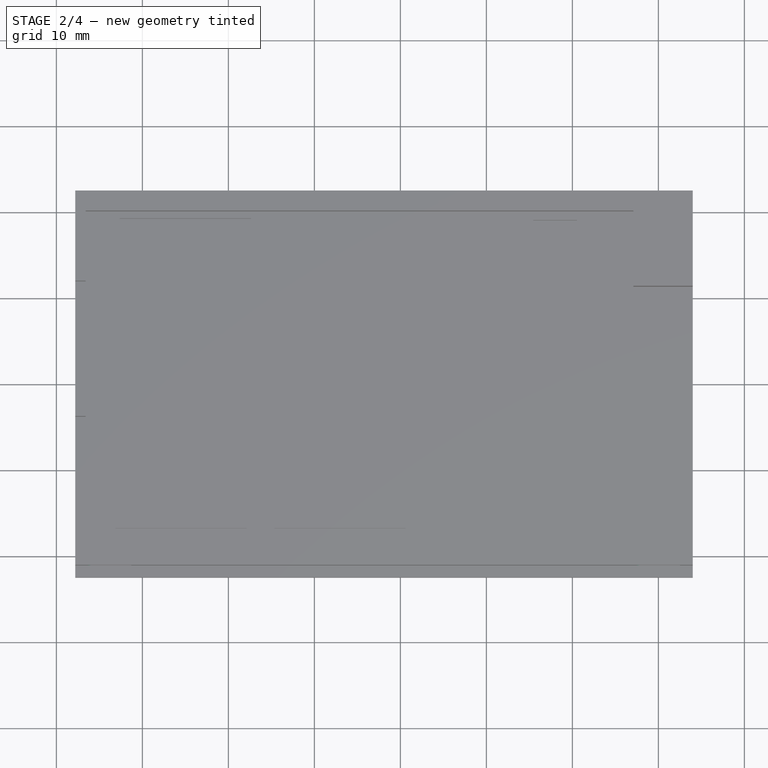
[diagram: stage 2 of 4 — top view after this stage's code; geometry added in this stage tinted green]
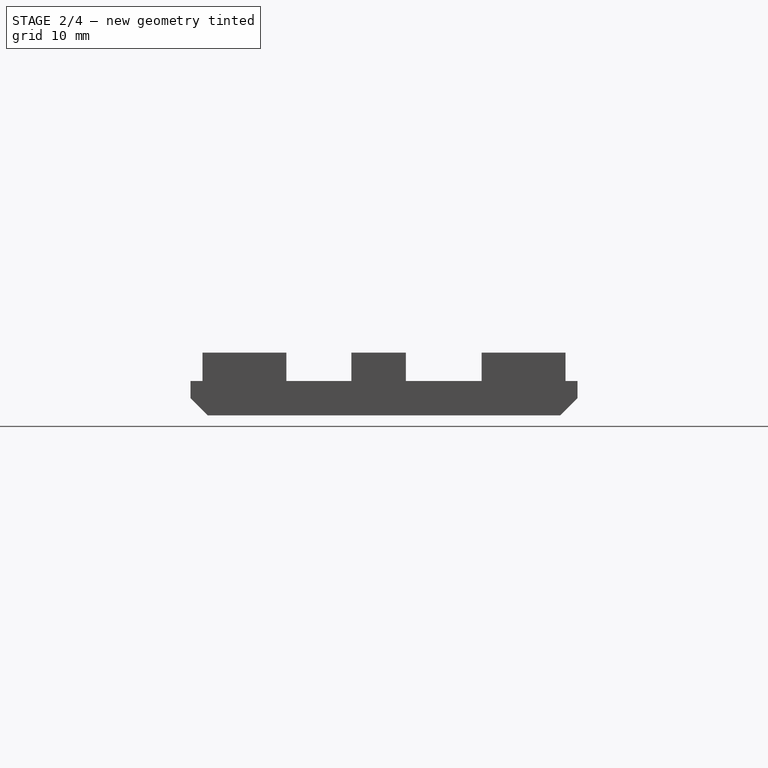
[diagram: stage 2 of 4 — right view after this stage's code; geometry added in this stage tinted green]
FEATURE [Sketcher::SketchObject] Sketch008
  ExternalGeometry = -> [Pad002]
  FullyConstrained = true
  MapMode = 5
  Placement = pos=(0,21.1,0) rot=(0,0.707107,0.707107;3.14159rad)
  Support = -> [Pad002]
  sketch-geometry (8):
    g0: LineSegment StartX=66.3 StartY=3.8 StartZ=0 EndX=61.3 EndY=3.8 EndZ=0
    g1: LineSegment StartX=61.3 StartY=3.8 StartZ=0 EndX=61.3 EndY=1.5 EndZ=0
    g2: LineSegment StartX=61.3 StartY=1.5 StartZ=0 EndX=66.3 EndY=1.5 EndZ=0
    g3: LineSegment StartX=66.3 StartY=1.5 StartZ=0 EndX=66.3 EndY=3.8 EndZ=0
    g4: LineSegment StartX=-2.5 StartY=3.8 StartZ=0 EndX=2.5 EndY=3.8 EndZ=0
    g5: LineSegment StartX=2.5 StartY=3.8 StartZ=0 EndX=2.5 EndY=1.5 EndZ=0
    g6: LineSegment StartX=2.5 StartY=1.5 StartZ=0 EndX=-2.5 EndY=1.5 EndZ=0
    g7: LineSegment StartX=-2.5 StartY=1.5 StartZ=0 EndX=-2.5 EndY=3.8 EndZ=0
  constraints (24):
    c: Coincident(g0,g1)
    c: Coincident(g1,g2)
    c: Coincident(g2,g3)
    c: Coincident(g3,g0)
    c: Horizontal(g0)
    c: Horizontal(g2)
    c: Vertical(g1)
    c: Vertical(g3)
    c: Coincident(g4,g5)
    c: Coincident(g5,g6)
    c: Coincident(g6,g7)
    c: Coincident(g7,g4)
    c: Horizontal(g4)
    c: Horizontal(g6)
    c: Vertical(g5)
    c: Vertical(g7)
    c: DistanceY(g-4,g2) = 0.5
    c: DistanceY(g0,g-3) = 0.5
    c: PointOnObject(g4,g0)
    c: PointOnObject(g5,g2)
    c: DistanceX(g0,g-3) = 1.5
    c: DistanceX(g-3,g4) = 1.5
    c: DistanceX(g4,g4) = 5
    c: Equal(g4,g0)
FEATURE [PartDesign::Pocket] Pocket001
  BaseFeature = -> Pad002
  Direction = (0,-1,2e-16)
  Length = 0.5
  Length2 = 5
  Profile = -> Sketch008
  ReferenceAxis = -> Sketch008 [N_Axis]
  Type = 0
FEATURE [Sketcher::SketchObject] Sketch009
  ExternalGeometry = -> [Pocket001]
  FullyConstrained = true
  MapMode = 5
  Placement = pos=(0,-21.1,0) rot=(1,0,0;1.5708rad)
  Support = -> [Pocket001]
  sketch-geometry (8):
    g0: LineSegment StartX=-66.3 StartY=3.8 StartZ=0 EndX=-61.3 EndY=3.8 EndZ=0
    g1: LineSegment StartX=-61.3 StartY=3.8 StartZ=0 EndX=-61.3 EndY=1.5 EndZ=0
    g2: LineSegment StartX=-61.3 StartY=1.5 StartZ=0 EndX=-66.3 EndY=1.5 EndZ=0
    g3: LineSegment StartX=-66.3 StartY=1.5 StartZ=0 EndX=-66.3 EndY=3.8 EndZ=0
    g4: LineSegment StartX=-2.5 StartY=3.8 StartZ=0 EndX=2.5 EndY=3.8 EndZ=0
    g5: LineSegment StartX=2.5 StartY=3.8 StartZ=0 EndX=2.5 EndY=1.5 EndZ=0
    g6: LineSegment StartX=2.5 StartY=1.5 StartZ=0 EndX=-2.5 EndY=1.5 EndZ=0
    g7: LineSegment StartX=-2.5 StartY=1.5 StartZ=0 EndX=-2.5 EndY=3.8 EndZ=0
  constraints (20):
    c: Coincident(g0,g1)
    c: Coincident(g1,g2)
    c: Coincident(g2,g3)
    c: Coincident(g3,g0)
    c: Horizontal(g0)
    c: Horizontal(g2)
    c: Vertical(g1)
    c: Vertical(g3)
    c: Coincident(g0,g-6)
    c: Coincident(g1,g-5)
    c: Coincident(g4,g5)
    c: Coincident(g5,g6)
    c: Coincident(g6,g7)
    c: Coincident(g7,g4)
    c: Horizontal(g4)
    c: Horizontal(g6)
    c: Vertical(g5)
    c: Vertical(g7)
    c: Coincident(g4,g-4)
    c: Coincident(g5,g-3)
FEATURE [PartDesign::Pocket] Pocket002
  BaseFeature = -> Pocket001
  Direction = (0,1,-2e-16)
  Length = 0.5
  Length2 = 5
  Profile = -> Sketch009
  ReferenceAxis = -> Sketch009 [N_Axis]
  Type = 0
FEATURE [PartDesign::Body] Body001  label="Top"
  Group = -> [Sketch005,ShapeBinder001,Pad003,Sketch006,Pad004,Sketch007,Pad005,Sketch010,Pad006,Sketch011,Pad007,Chamfer,Chamfer001]
  Origin = -> Origin043
  Tip = -> Chamfer001
FEATURE [PartDesign::Chamfer] Chamfer002
  Angle = 45
  Base = -> Pocket002 [Edge70,Edge27]
  BaseFeature = -> Pocket002
  ChamferType = 0
  FlipDirection = false
  Size = 2
  Size2 = 1
  SupportTransform = false
  UseAllEdges = false
FEATURE [PartDesign::Body] Body
  Group = -> [ShapeBinder,Sketch,Sketch001,Pad,Sketch002,Pad001,Sketch003,Pocket,Sketch004,Pad002,Sketch008,Pocket001,Sketch009,Pocket002,Chamfer002]
  Origin = -> Origin042
  Tip = -> Chamfer002
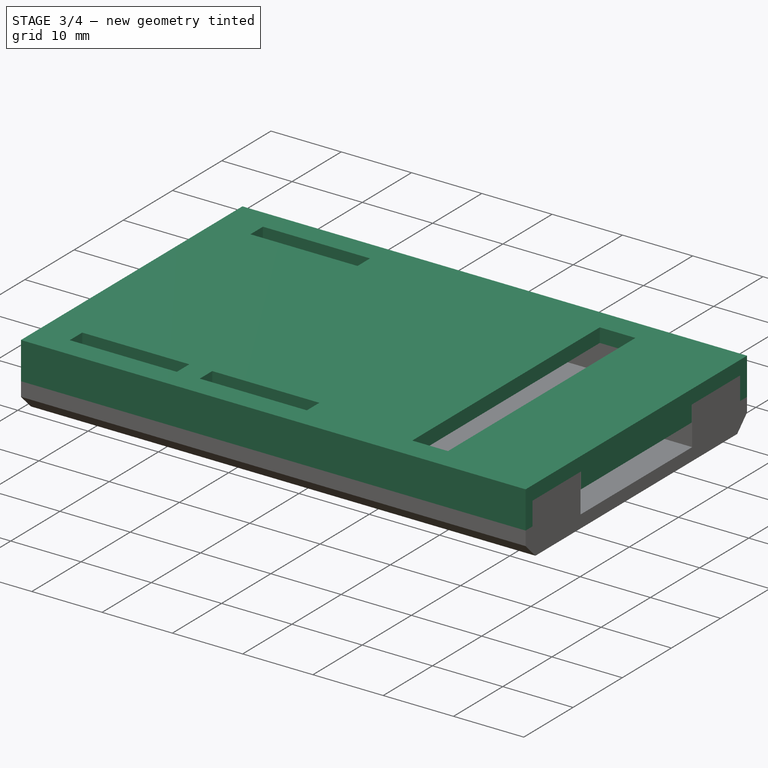
[diagram: stage 3 of 4 — iso view after this stage's code; geometry added in this stage tinted green]
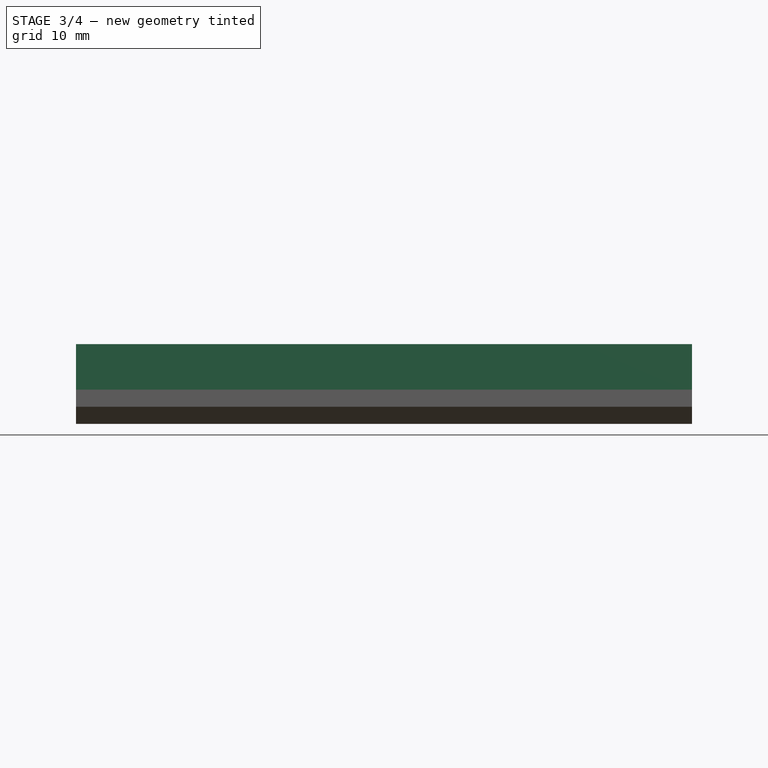
[diagram: stage 3 of 4 — front view after this stage's code; geometry added in this stage tinted green]
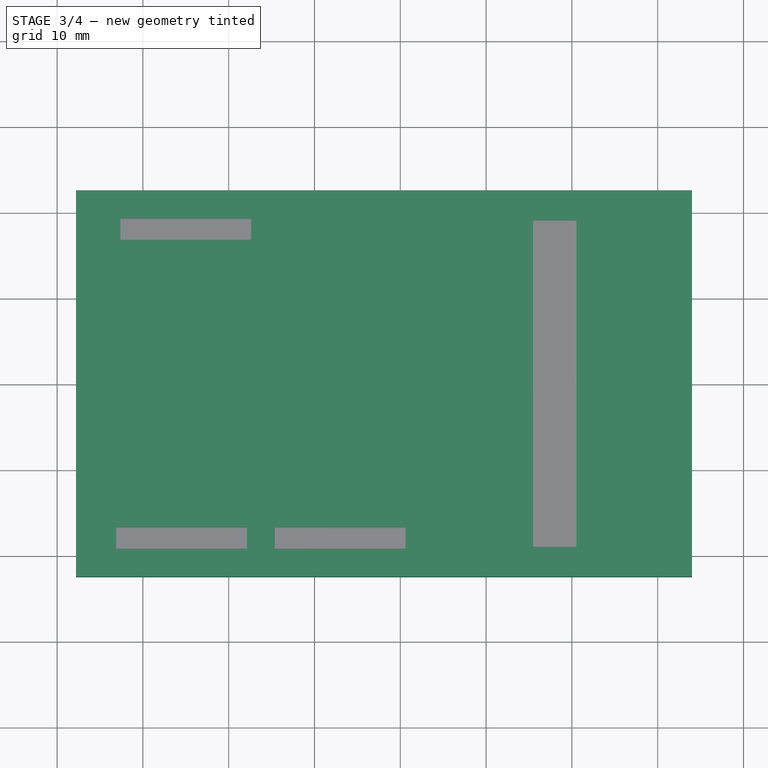
[diagram: stage 3 of 4 — top view after this stage's code; geometry added in this stage tinted green]
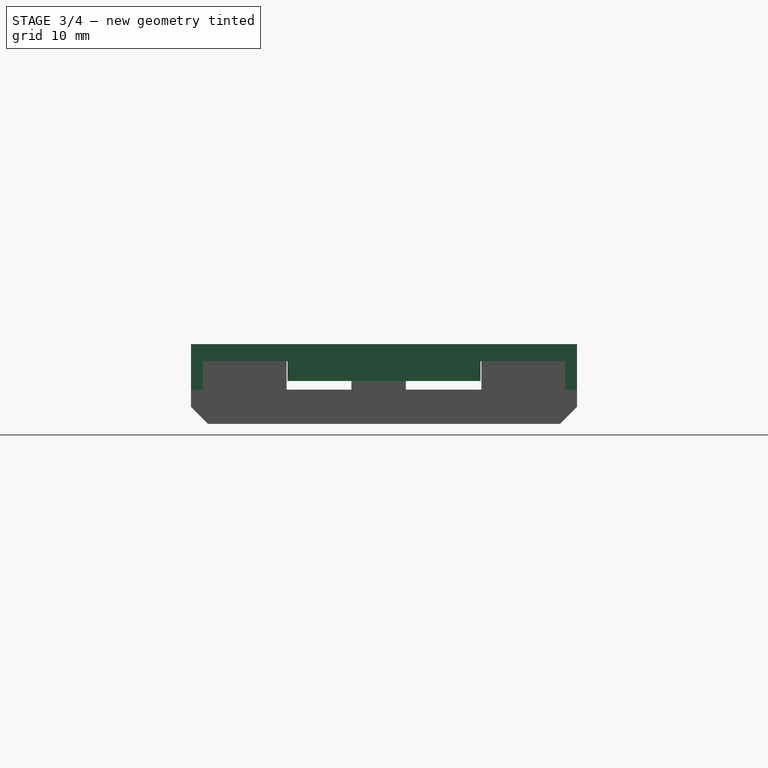
[diagram: stage 3 of 4 — right view after this stage's code; geometry added in this stage tinted green]
FEATURE [PartDesign::ShapeBinder] ShapeBinder001
  Support = -> [Sketch]
  TraceSupport = false
FEATURE [Sketcher::SketchObject] Sketch005
  AttachmentOffset = pos=(0,0,4.3) rot=(0,0,1;0rad)
  ExternalGeometry = -> [ShapeBinder001]
  FullyConstrained = true
  MapMode = 5
  Placement = pos=(0,0,4.3) rot=(0,0,1;0rad)
  Support = -> [XY_Plane043]
  sketch-geometry (22):
    g0: LineSegment StartX=-67.8 StartY=22.5 StartZ=0 EndX=-67.8 EndY=-22.5 EndZ=0
    g1: LineSegment StartX=-67.8 StartY=-22.5 StartZ=0 EndX=4 EndY=-22.5 EndZ=0
    g2: LineSegment StartX=-67.8 StartY=22.5 StartZ=0 EndX=4 EndY=22.5 EndZ=0
    g3: LineSegment StartX=4 StartY=22.5 StartZ=0 EndX=4 EndY=-22.5 EndZ=0
    g4: LineSegment StartX=-67.8 StartY=22.5 StartZ=0 EndX=-66.5 EndY=20 EndZ=0
    g5: LineSegment StartX=-67.8 StartY=-22.5 StartZ=0 EndX=-66.5 EndY=-20 EndZ=0
    g6: LineSegment StartX=-62.62 StartY=19.27 StartZ=0 EndX=-47.38 EndY=19.27 EndZ=0
    g7: LineSegment StartX=-47.38 StartY=19.27 StartZ=0 EndX=-47.38 EndY=16.73 EndZ=0
    g8: LineSegment StartX=-47.38 StartY=16.73 StartZ=0 EndX=-62.62 EndY=16.73 EndZ=0
    g9: LineSegment StartX=-62.62 StartY=16.73 StartZ=0 EndX=-62.62 EndY=19.27 EndZ=0
    g10: LineSegment StartX=-63.12 StartY=-16.73 StartZ=0 EndX=-47.88 EndY=-16.73 EndZ=0
    g11: LineSegment StartX=-47.88 StartY=-16.73 StartZ=0 EndX=-47.88 EndY=-19.27 EndZ=0
    g12: LineSegment StartX=-47.88 StartY=-19.27 StartZ=0 EndX=-63.12 EndY=-19.27 EndZ=0
    g13: LineSegment StartX=-63.12 StartY=-19.27 StartZ=0 EndX=-63.12 EndY=-16.73 EndZ=0
    g14: LineSegment StartX=-44.62 StartY=-16.73 StartZ=0 EndX=-29.38 EndY=-16.73 EndZ=0
    g15: LineSegment StartX=-29.38 StartY=-16.73 StartZ=0 EndX=-29.38 EndY=-19.27 EndZ=0
    g16: LineSegment StartX=-29.38 StartY=-19.27 StartZ=0 EndX=-44.62 EndY=-19.27 EndZ=0
    g17: LineSegment StartX=-44.62 StartY=-19.27 StartZ=0 EndX=-44.62 EndY=-16.73 EndZ=0
    g18: LineSegment StartX=-14.54 StartY=19.05 StartZ=0 EndX=-9.46 EndY=19.05 EndZ=0
    g19: LineSegment StartX=-9.46 StartY=19.05 StartZ=0 EndX=-9.46 EndY=-19.05 EndZ=0
    g20: LineSegment StartX=-9.46 StartY=-19.05 StartZ=0 EndX=-14.54 EndY=-19.05 EndZ=0
    g21: LineSegment StartX=-14.54 StartY=-19.05 StartZ=0 EndX=-14.54 EndY=19.05 EndZ=0
  constraints (56):
    c: Vertical(g0)
    c: DistanceX(g0,g-5) = 1.3
    c: Coincident(g1,g0)
    c: Horizontal(g1)
    c: DistanceX(g-4,g1) = 7
    c: Coincident(g2,g0)
    c: Horizontal(g2)
    c: Coincident(g3,g2)
    c: Coincident(g3,g1)
    c: Vertical(g3)
    c: DistanceY(g3,g3) = 45
    c: Coincident(g4,g0)
    c: Coincident(g4,g-5)
    c: Coincident(g5,g0)
    c: Coincident(g5,g-5)
    c: Equal(g5,g4)
    c: Coincident(g6,g7)
    c: Coincident(g7,g8)
    c: Coincident(g8,g9)
    c: Coincident(g9,g6)
    c: Horizontal(g6)
    c: Horizontal(g8)
    c: Vertical(g7)
    c: Vertical(g9)
    c: Coincident(g6,g-14)
    c: Coincident(g7,g-15)
    c: Coincident(g10,g11)
    c: Coincident(g11,g12)
    c: Coincident(g12,g13)
    c: Coincident(g13,g10)
    c: Horizontal(g10)
    c: Horizontal(g12)
    c: Vertical(g11)
    c: Vertical(g13)
    c: Coincident(g10,g-13)
    c: Coincident(g11,g-12)
    c: Coincident(g14,g15)
    c: Coincident(g15,g16)
    c: Coincident(g16,g17)
    c: Coincident(g17,g14)
    c: Horizontal(g14)
    c: Horizontal(g16)
    c: Vertical(g15)
    c: Vertical(g17)
    c: Coincident(g14,g-11)
    c: Coincident(g15,g-10)
    c: Coincident(g18,g19)
    c: Coincident(g19,g20)
    c: Coincident(g20,g21)
    c: Coincident(g21,g18)
    c: Horizontal(g18)
    c: Horizontal(g20)
    c: Vertical(g19)
    c: Vertical(g21)
    c: Coincident(g18,g-8)
    c: Coincident(g19,g-9)
FEATURE [PartDesign::Pad] Pad003
  Direction = (0,0,1)
  Length = 2
  Length2 = 10
  Profile = -> Sketch005
  ReferenceAxis = -> Sketch005 [N_Axis]
  Type = 0
FEATURE [Sketcher::SketchObject] Sketch006
  ExternalGeometry = -> [Pad003,ShapeBinder001]
  FullyConstrained = true
  MapMode = 5
  Placement = pos=(0,0,4.3) rot=(1,0,0;3.14159rad)
  Support = -> [Pad003]
  sketch-geometry (8):
    g0: LineSegment StartX=-67.8 StartY=22.5 StartZ=0 EndX=4 EndY=22.5 EndZ=0
    g1: LineSegment StartX=4 StartY=22.5 StartZ=0 EndX=4 EndY=21.1 EndZ=0
    g2: LineSegment StartX=4 StartY=21.1 StartZ=0 EndX=-67.8 EndY=21.1 EndZ=0
    g3: LineSegment StartX=-67.8 StartY=21.1 StartZ=0 EndX=-67.8 EndY=22.5 EndZ=0
    g4: LineSegment StartX=-67.8 StartY=-22.5 StartZ=0 EndX=4 EndY=-22.5 EndZ=0
    g5: LineSegment StartX=4 StartY=-22.5 StartZ=0 EndX=4 EndY=-21.1 EndZ=0
    g6: LineSegment StartX=4 StartY=-21.1 StartZ=0 EndX=-67.8 EndY=-21.1 EndZ=0
    g7: LineSegment StartX=-67.8 StartY=-21.1 StartZ=0 EndX=-67.8 EndY=-22.5 EndZ=0
  constraints (20):
    c: Coincident(g0,g1)
    c: Coincident(g1,g2)
    c: Coincident(g2,g3)
    c: Coincident(g3,g0)
    c: Horizontal(g2)
    c: Vertical(g1)
    c: Vertical(g3)
    c: Coincident(g0,g-3)
    c: Coincident(g0,g-3)
    c: DistanceY(g-5,g1) = 1.1
    c: Coincident(g4,g5)
    c: Coincident(g5,g6)
    c: Coincident(g6,g7)
    c: Coincident(g7,g4)
    c: Horizontal(g6)
    c: Vertical(g5)
    c: Vertical(g7)
    c: Coincident(g4,g-4)
    c: Coincident(g4,g-4)
    c: Equal(g1,g5)
FEATURE [PartDesign::Pad] Pad004
  BaseFeature = -> Pad003
  Direction = (0,0,-1)
  Length = 3.3
  Length2 = 10
  Profile = -> Sketch006
  ReferenceAxis = -> Sketch006 [N_Axis]
  Type = 0
FEATURE [Sketcher::SketchObject] Sketch007
  ExternalGeometry = -> [ShapeBinder001,Pad004]
  FullyConstrained = true
  MapMode = 5
  Placement = pos=(0,0,4.3) rot=(1,0,0;3.14159rad)
  Support = -> [Pad004]
  sketch-geometry (4):
    g0: LineSegment StartX=-3 StartY=11.25 StartZ=0 EndX=4 EndY=11.25 EndZ=0
    g1: LineSegment StartX=4 StartY=11.25 StartZ=0 EndX=4 EndY=-11.25 EndZ=0
    g2: LineSegment StartX=4 StartY=-11.25 StartZ=0 EndX=-3 EndY=-11.25 EndZ=0
    g3: LineSegment StartX=-3 StartY=-11.25 StartZ=0 EndX=-3 EndY=11.25 EndZ=0
  constraints (10):
    c: Coincident(g0,g1)
    c: Coincident(g1,g2)
    c: Coincident(g2,g3)
    c: Coincident(g3,g0)
    c: Horizontal(g0)
    c: Horizontal(g2)
    c: Vertical(g1)
    c: Coincident(g0,g-3)
    c: PointOnObject(g1,g-5)
    c: Coincident(g2,g-4)
FEATURE [PartDesign::Pad] Pad005
  BaseFeature = -> Pad004
  Direction = (0,0,-1)
  Length = 2.3
  Length2 = 10
  Profile = -> Sketch007
  ReferenceAxis = -> Sketch007 [N_Axis]
  Type = 0
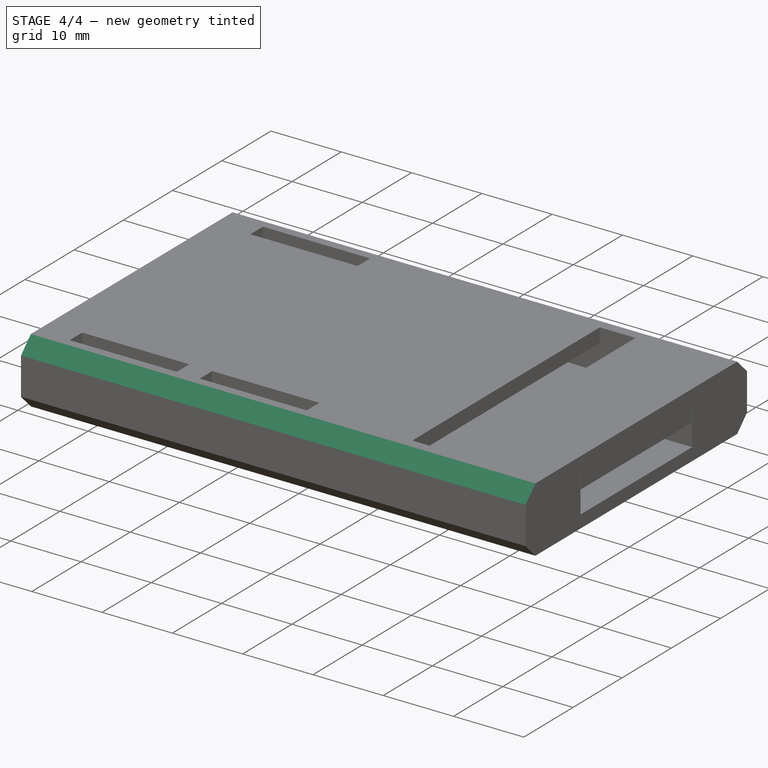
[diagram: stage 4 of 4 — iso view after this stage's code; geometry added in this stage tinted green]
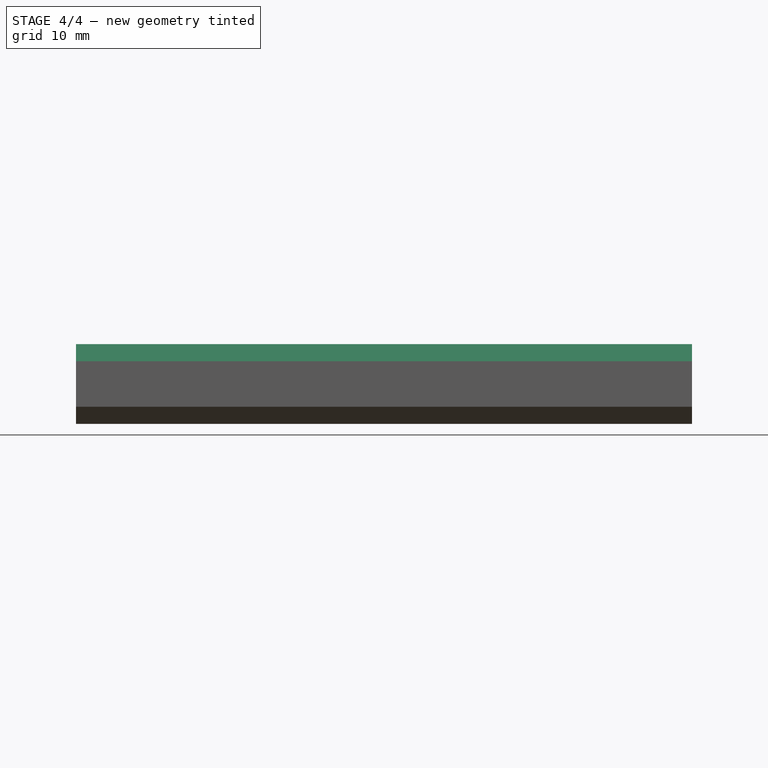
[diagram: stage 4 of 4 — front view after this stage's code; geometry added in this stage tinted green]
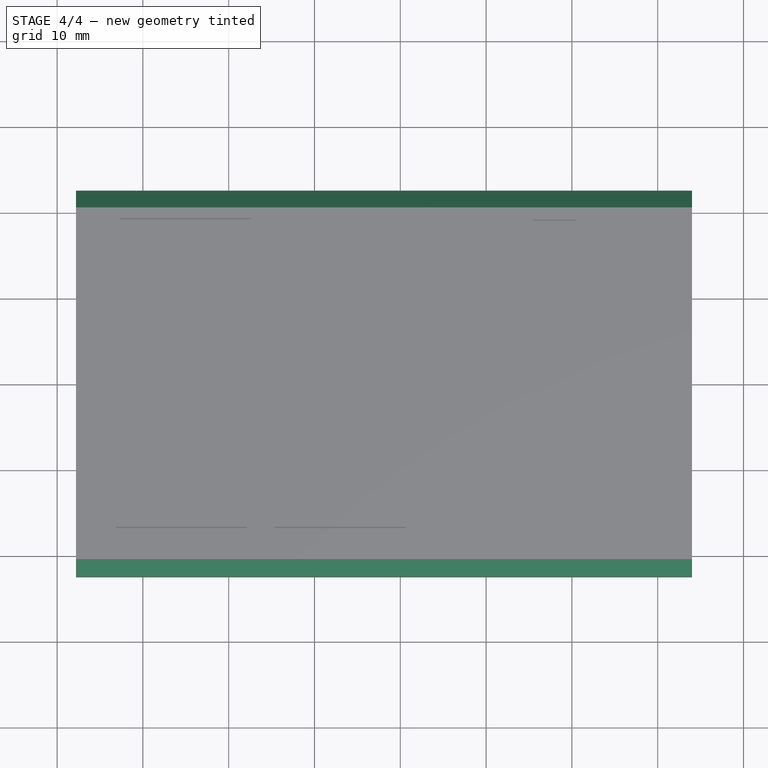
[diagram: stage 4 of 4 — top view after this stage's code; geometry added in this stage tinted green]
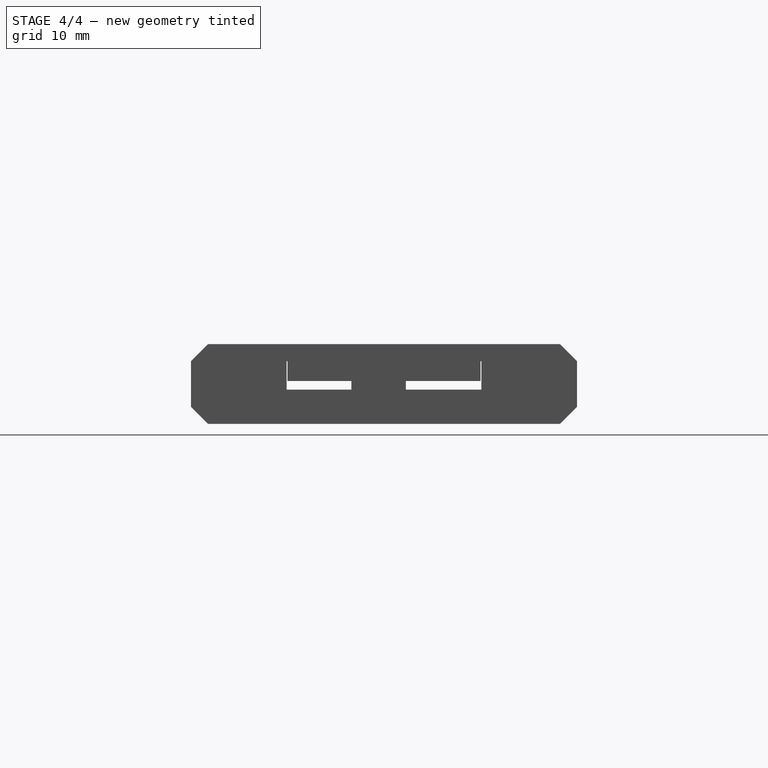
[diagram: stage 4 of 4 — right view after this stage's code; geometry added in this stage tinted green]
FEATURE [Sketcher::SketchObject] Sketch010
  ExternalGeometry = -> [Pad005]
  FullyConstrained = true
  MapMode = 5
  Placement = pos=(0,21.1,0) rot=(1,0,0;1.5708rad)
  Support = -> [Pad005]
  sketch-geometry (8):
    g0: LineSegment StartX=2.5 StartY=3.8 StartZ=0 EndX=-2.5 EndY=3.8 EndZ=0
    g1: LineSegment StartX=-2.5 StartY=3.8 StartZ=0 EndX=-2.5 EndY=1.5 EndZ=0
    g2: LineSegment StartX=-2.5 StartY=1.5 StartZ=0 EndX=2.5 EndY=1.5 EndZ=0
    g3: LineSegment StartX=2.5 StartY=1.5 StartZ=0 EndX=2.5 EndY=3.8 EndZ=0
    g4: LineSegment StartX=-66.3 StartY=3.8 StartZ=0 EndX=-61.3 EndY=3.8 EndZ=0
    g5: LineSegment StartX=-61.3 StartY=3.8 StartZ=0 EndX=-61.3 EndY=1.5 EndZ=0
    g6: LineSegment StartX=-61.3 StartY=1.5 StartZ=0 EndX=-66.3 EndY=1.5 EndZ=0
    g7: LineSegment StartX=-66.3 StartY=1.5 StartZ=0 EndX=-66.3 EndY=3.8 EndZ=0
  constraints (24):
    c: Coincident(g0,g1)
    c: Coincident(g1,g2)
    c: Coincident(g2,g3)
    c: Coincident(g3,g0)
    c: Horizontal(g0)
    c: Horizontal(g2)
    c: Vertical(g1)
    c: Vertical(g3)
    c: Coincident(g4,g5)
    c: Coincident(g5,g6)
    c: Coincident(g6,g7)
    c: Coincident(g7,g4)
    c: Horizontal(g4)
    c: Horizontal(g6)
    c: Vertical(g5)
    c: Vertical(g7)
    c: DistanceY(g-3,g6) = 0.5
    c: DistanceY(g4,g-4) = 0.5
    c: DistanceX(g-4,g4) = 1.5
    c: PointOnObject(g0,g4)
    c: PointOnObject(g1,g6)
    c: Equal(g0,g4)
    c: DistanceX(g4,g4) = 5
    c: DistanceX(g0,g-4) = 1.5
FEATURE [PartDesign::Pad] Pad006
  BaseFeature = -> Pad005
  Direction = (0,-1,2e-16)
  Length = 0.4
  Length2 = 10
  Profile = -> Sketch010
  ReferenceAxis = -> Sketch010 [N_Axis]
  Type = 0
FEATURE [Sketcher::SketchObject] Sketch011
  ExternalGeometry = -> [Pad006]
  FullyConstrained = true
  MapMode = 5
  Placement = pos=(0,-21.1,0) rot=(0,0.707107,0.707107;3.14159rad)
  Support = -> [Pad006]
  sketch-geometry (8):
    g0: LineSegment StartX=-2.5 StartY=3.8 StartZ=0 EndX=2.5 EndY=3.8 EndZ=0
    g1: LineSegment StartX=2.5 StartY=3.8 StartZ=0 EndX=2.5 EndY=1.5 EndZ=0
    g2: LineSegment StartX=2.5 StartY=1.5 StartZ=0 EndX=-2.5 EndY=1.5 EndZ=0
    g3: LineSegment StartX=-2.5 StartY=1.5 StartZ=0 EndX=-2.5 EndY=3.8 EndZ=0
    g4: LineSegment StartX=61.3 StartY=3.8 StartZ=0 EndX=66.3 EndY=3.8 EndZ=0
    g5: LineSegment StartX=66.3 StartY=3.8 StartZ=0 EndX=66.3 EndY=1.5 EndZ=0
    g6: LineSegment StartX=66.3 StartY=1.5 StartZ=0 EndX=61.3 EndY=1.5 EndZ=0
    g7: LineSegment StartX=61.3 StartY=1.5 StartZ=0 EndX=61.3 EndY=3.8 EndZ=0
  constraints (20):
    c: Coincident(g0,g1)
    c: Coincident(g1,g2)
    c: Coincident(g2,g3)
    c: Coincident(g3,g0)
    c: Horizontal(g0)
    c: Horizontal(g2)
    c: Vertical(g1)
    c: Vertical(g3)
    c: Coincident(g0,g-5)
    c: Coincident(g1,g-6)
    c: Coincident(g4,g5)
    c: Coincident(g5,g6)
    c: Coincident(g6,g7)
    c: Coincident(g7,g4)
    c: Horizontal(g4)
    c: Horizontal(g6)
    c: Vertical(g5)
    c: Vertical(g7)
    c: Coincident(g4,g-4)
    c: Coincident(g5,g-3)
FEATURE [PartDesign::Pad] Pad007
  BaseFeature = -> Pad006
  Direction = (0,1,-2e-16)
  Length = 0.4
  Length2 = 10
  Profile = -> Sketch011
  ReferenceAxis = -> Sketch011 [N_Axis]
  Type = 0
FEATURE [PartDesign::Chamfer] Chamfer
  Angle = 45
  Base = -> Pad007 [Edge140,Edge132,Edge126,Edge116]
  BaseFeature = -> Pad007
  ChamferType = 0
  FlipDirection = false
  Refine = true
  Size = 0.399
  Size2 = 1
  SupportTransform = false
  UseAllEdges = false
FEATURE [PartDesign::Chamfer] Chamfer001
  Angle = 45
  Base = -> Chamfer [Edge114,Edge112]
  BaseFeature = -> Chamfer
  ChamferType = 0
  FlipDirection = false
  Size = 2
  Size2 = 1
  SupportTransform = false
  UseAllEdges = false
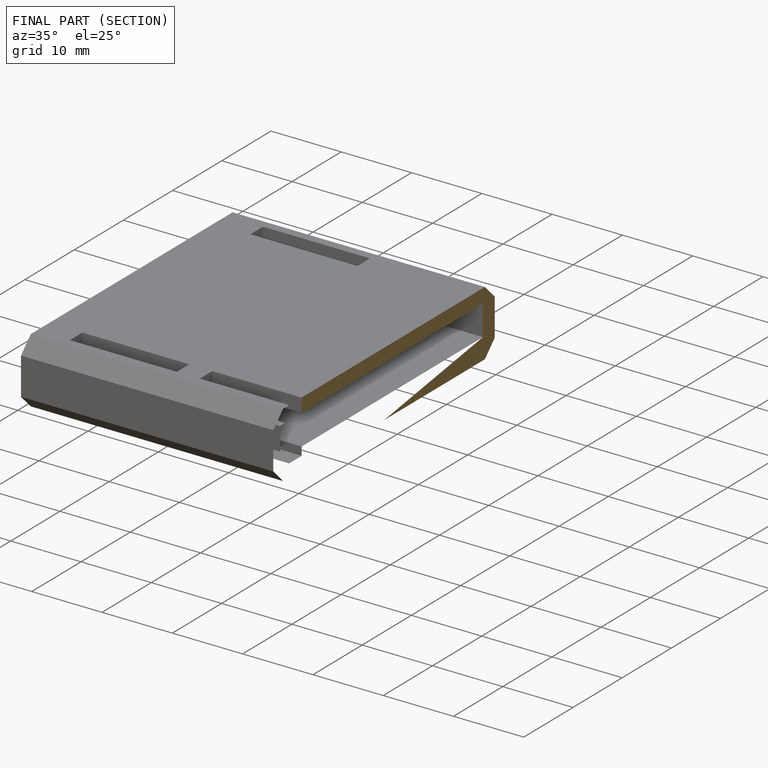
[diagram: finished part — half-section view (interior)]
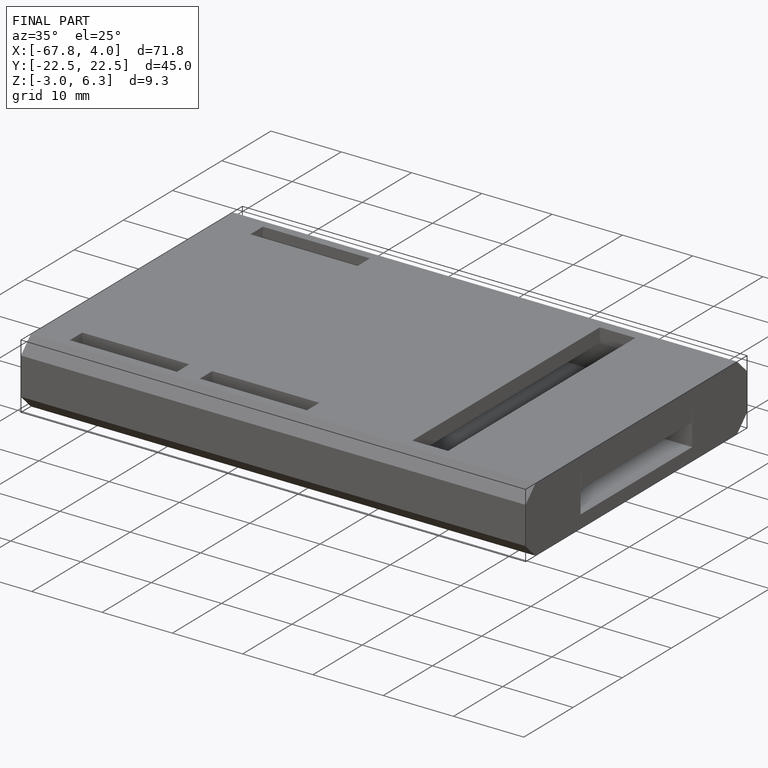
[diagram: finished part — iso view with bounding-box wireframe]
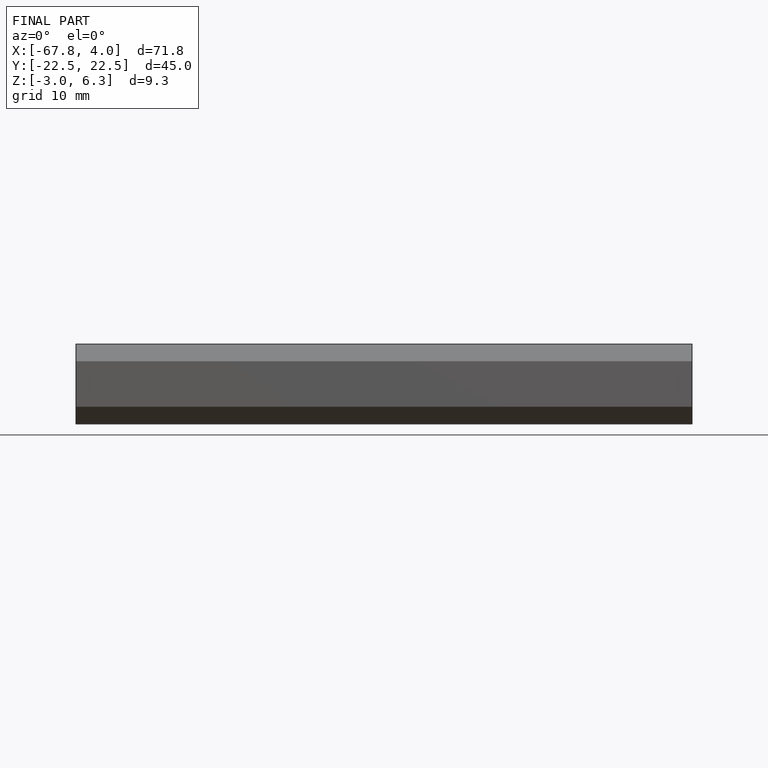
[diagram: finished part — front view with bounding-box wireframe]
